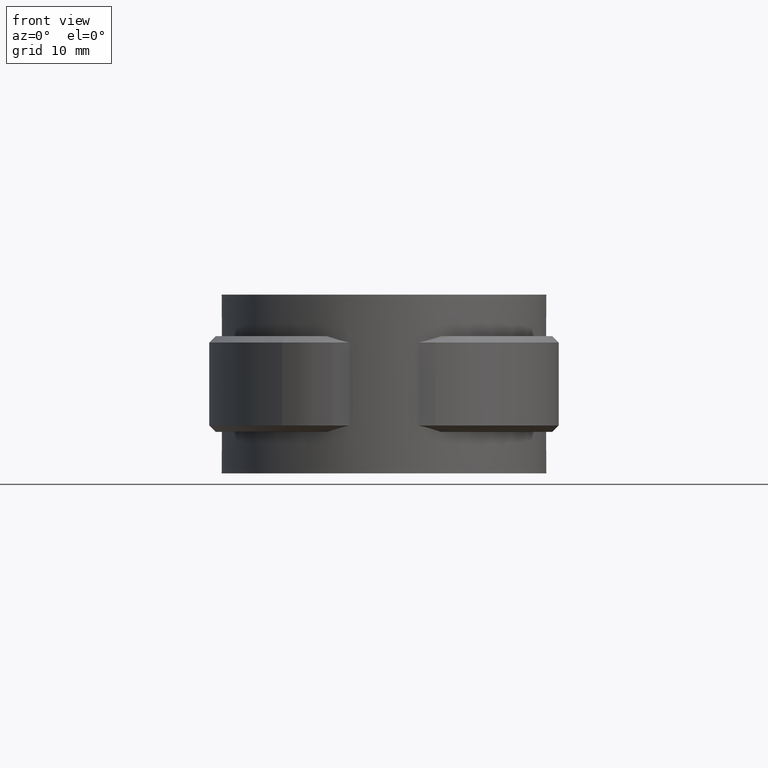
[diagram: clean part render]
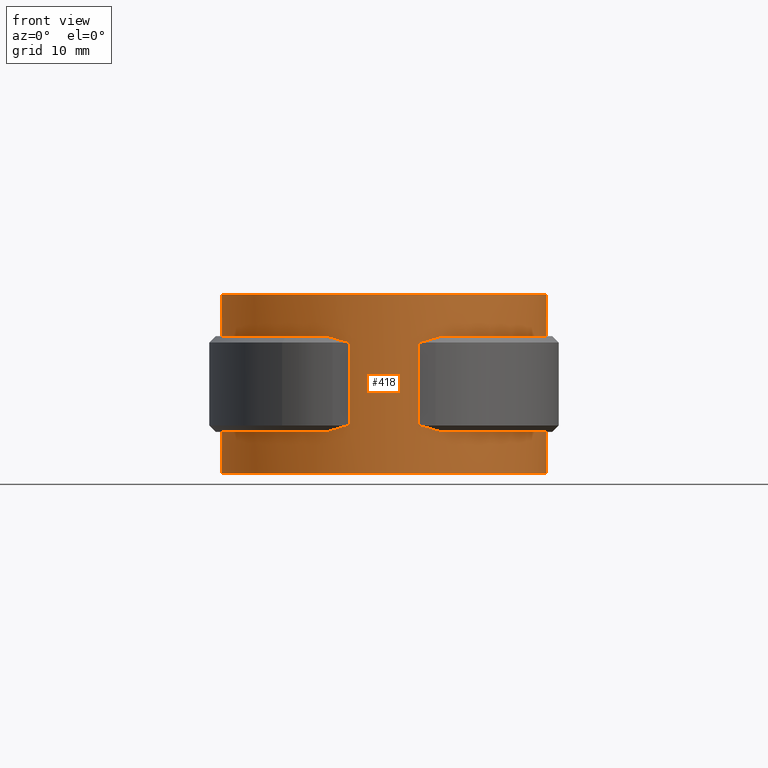
[diagram: same view with one face highlighted and labeled with its STEP entity id]
A machine part, front view. The second image highlights one B-rep face of the part: STEP entity #418.
In plain terms, the highlighted cylindrical surface (partial cylindrical patch) has radius 25.445 mm, axis along (0, 0, -1).
Its self-contained STEP definition (entity closure, byte-faithful):
#418 = ADVANCED_FACE( '', ( #760 ), #761, .T. );
#760 = FACE_OUTER_BOUND( '', #1606, .T. );
#761 = CYLINDRICAL_SURFACE( '', #1607, 25.4450000000000 );
#1606 = EDGE_LOOP( '', ( #4063, #4064, #4065, #4066, #4067, #4068, #4069, #4070, #4071, #4072, #4073, #4074, #4075, #4076, #4077, #4078, #4079, #4080, #4081, #4082 ) );
#1607 = AXIS2_PLACEMENT_3D( '', #4083, #4084, #4085 );
#4063 = ORIENTED_EDGE( '', *, *, #5209, .F. );
#4064 = ORIENTED_EDGE( '', *, *, #5204, .T. );
#4065 = ORIENTED_EDGE( '', *, *, #5145, .T. );
#4066 = ORIENTED_EDGE( '', *, *, #5210, .F. );
#4067 = ORIENTED_EDGE( '', *, *, #5211, .T. );
#4068 = ORIENTED_EDGE( '', *, *, #5212, .T. );
#4069 = ORIENTED_EDGE( '', *, *, #5213, .T. );
#4070 = ORIENTED_EDGE( '', *, *, #5214, .F. );
#4071 = ORIENTED_EDGE( '', *, *, #5215, .T. );
#4072 = ORIENTED_EDGE( '', *, *, #5216, .T. );
#4073 = ORIENTED_EDGE( '', *, *, #5217, .F. );
#4074 = ORIENTED_EDGE( '', *, *, #5218, .T. );
#4075 = ORIENTED_EDGE( '', *, *, #5219, .T. );
#4076 = ORIENTED_EDGE( '', *, *, #5220, .T. );
#4077 = ORIENTED_EDGE( '', *, *, #5221, .T. );
#4078 = ORIENTED_EDGE( '', *, *, #5222, .T. );
#4079 = ORIENTED_EDGE( '', *, *, #5223, .T. );
#4080 = ORIENTED_EDGE( '', *, *, #5224, .T. );
#4081 = ORIENTED_EDGE( '', *, *, #5225, .F. );
#4082 = ORIENTED_EDGE( '', *, *, #5226, .F. );
#4083 = CARTESIAN_POINT( '', ( 0.000000000000000, 0.000000000000000, -26.5000000000000 ) );
#4084 = DIRECTION( '', ( 0.000000000000000, 0.000000000000000, -1.00000000000000 ) );
#4085 = DIRECTION( '', ( -1.00000000000000, 6.07153216591882E-017, 0.000000000000000 ) );
#5145 = EDGE_CURVE( '', #5909, #5912, #5914, .T. );
#5204 = EDGE_CURVE( '', #6001, #5909, #6002, .F. );
#5209 = EDGE_CURVE( '', #6001, #6009, #6010, .T. );
#5210 = EDGE_CURVE( '', #6011, #5912, #6012, .T. );
#5211 = EDGE_CURVE( '', #6011, #6013, #6014, .F. );
#5212 = EDGE_CURVE( '', #6013, #6015, #6016, .T. );
#5213 = EDGE_CURVE( '', #6015, #6017, #6018, .T. );
#5214 = EDGE_CURVE( '', #6019, #6017, #6020, .T. );
#5215 = EDGE_CURVE( '', #6019, #6021, #6022, .T. );
#5216 = EDGE_CURVE( '', #6021, #6023, #6024, .T. );
#5217 = EDGE_CURVE( '', #6025, #6023, #6026, .T. );
#5218 = EDGE_CURVE( '', #6025, #6027, #6028, .F. );
#5219 = EDGE_CURVE( '', #6027, #6029, #6030, .F. );
#5220 = EDGE_CURVE( '', #6029, #6031, #6032, .T. );
#5221 = EDGE_CURVE( '', #6031, #6033, #6034, .T. );
#5222 = EDGE_CURVE( '', #6033, #6035, #6036, .T. );
#5223 = EDGE_CURVE( '', #6035, #6037, #6038, .T. );
#5224 = EDGE_CURVE( '', #6037, #6039, #6040, .T. );
#5225 = EDGE_CURVE( '', #6041, #6039, #6042, .T. );
#5226 = EDGE_CURVE( '', #6009, #6041, #6043, .T. );
#5909 = VERTEX_POINT( '', #9054 );
#5912 = VERTEX_POINT( '', #9058 );
#5914 = ELLIPSE( '', #9061, 35.9846640945834, 25.4450000000000 );
#6001 = VERTEX_POINT( '', #9501 );
#6002 = B_SPLINE_CURVE_WITH_KNOTS( '', 3, ( #9502, #9503, #9504, #9505 ), .UNSPECIFIED., .F., .F., ( 4, 4 ), ( 0.00652673866714741, 0.00747501353473143 ), .UNSPECIFIED. );
#6009 = VERTEX_POINT( '', #9515 );
#6010 = CIRCLE( '', #9516, 25.4450000000000 );
#6011 = VERTEX_POINT( '', #9517 );
#6012 = LINE( '', #9518, #9519 );
#6013 = VERTEX_POINT( '', #9520 );
#6014 = ELLIPSE( '', #9521, 35.9846640945834, 25.4450000000000 );
#6015 = VERTEX_POINT( '', #9522 );
#6016 = B_SPLINE_CURVE_WITH_KNOTS( '', 3, ( #9523, #9524, #9525, #9526 ), .UNSPECIFIED., .F., .F., ( 4, 4 ), ( 0.00652673866714742, 0.00747501353473143 ), .UNSPECIFIED. );
#6017 = VERTEX_POINT( '', #9527 );
#6018 = CIRCLE( '', #9528, 25.4450000000000 );
#6019 = VERTEX_POINT( '', #9529 );
#6020 = LINE( '', #9530, #9531 );
#6021 = VERTEX_POINT( '', #9532 );
#6022 = CIRCLE( '', #9533, 25.4450000000000 );
#6023 = VERTEX_POINT( '', #9534 );
#6024 = LINE( '', #9535, #9536 );
#6025 = VERTEX_POINT( '', #9537 );
#6026 = CIRCLE( '', #9538, 25.4450000000000 );
#6027 = VERTEX_POINT( '', #9539 );
#6028 = B_SPLINE_CURVE_WITH_KNOTS( '', 3, ( #9540, #9541, #9542, #9543 ), .UNSPECIFIED., .F., .F., ( 4, 4 ), ( 0.00652673866714745, 0.00747501353473144 ), .UNSPECIFIED. );
#6029 = VERTEX_POINT( '', #9544 );
#6030 = ELLIPSE( '', #9545, 35.9846640945834, 25.4450000000000 );
#6031 = VERTEX_POINT( '', #9546 );
#6032 = LINE( '', #9547, #9548 );
#6033 = VERTEX_POINT( '', #9549 );
#6034 = ELLIPSE( '', #9550, 35.9846640945834, 25.4450000000000 );
#6035 = VERTEX_POINT( '', #9551 );
#6036 = B_SPLINE_CURVE_WITH_KNOTS( '', 3, ( #9552, #9553, #9554, #9555 ), .UNSPECIFIED., .F., .F., ( 4, 4 ), ( 0.00652673866714744, 0.00747501353473144 ), .UNSPECIFIED. );
#6037 = VERTEX_POINT( '', #9556 );
#6038 = CIRCLE( '', #9557, 25.4450000000000 );
#6039 = VERTEX_POINT( '', #9558 );
#6040 = LINE( '', #9559, #9560 );
#6041 = VERTEX_POINT( '', #9561 );
#6042 = CIRCLE( '', #9562, 25.4450000000000 );
#6043 = LINE( '', #9563, #9564 );
#9054 = CARTESIAN_POINT( '', ( -8.05583173856056, -24.1361057339414, -5.27610573394143 ) );
#9058 = CARTESIAN_POINT( '', ( -5.42479723123359, -24.8600000000000, -6.00000000000001 ) );
#9061 = AXIS2_PLACEMENT_3D( '', #10373, #10374, #10375 );
#9501 = CARTESIAN_POINT( '', ( -8.91979160752349, -23.8303449970485, -5.00000000000000 ) );
#9502 = CARTESIAN_POINT( '', ( -8.05583173856056, -24.1361057339414, -5.27610573394143 ) );
#9503 = CARTESIAN_POINT( '', ( -8.34355497958179, -24.0400732570170, -5.18007325701699 ) );
#9504 = CARTESIAN_POINT( '', ( -8.63150361201531, -23.9382523245841, -5.08788595841346 ) );
#9505 = CARTESIAN_POINT( '', ( -8.91979160752349, -23.8303449970485, -5.00000000000000 ) );
#9515 = CARTESIAN_POINT( '', ( -6.09999999999999, 24.7029962757557, -5.00000000000000 ) );
#9516 = AXIS2_PLACEMENT_3D( '', #10441, #10442, #10443 );
#9517 = CARTESIAN_POINT( '', ( -5.42479723123359, -24.8600000000000, -19.0000000000000 ) );
#9518 = CARTESIAN_POINT( '', ( -5.42479723123359, -24.8600000000000, -20.0000000000000 ) );
#9519 = VECTOR( '', #10444, 1000.00000000000 );
#9520 = CARTESIAN_POINT( '', ( -8.05583173856057, -24.1361057339414, -19.7238942660586 ) );
#9521 = AXIS2_PLACEMENT_3D( '', #10445, #10446, #10447 );
#9522 = CARTESIAN_POINT( '', ( -8.91979160752351, -23.8303449970485, -20.0000000000000 ) );
#9523 = CARTESIAN_POINT( '', ( -8.05583173856057, -24.1361057339414, -19.7238942660586 ) );
#9524 = CARTESIAN_POINT( '', ( -8.34355497958181, -24.0400732570170, -19.8199267429830 ) );
#9525 = CARTESIAN_POINT( '', ( -8.63150361201532, -23.9382523245841, -19.9121140415865 ) );
#9526 = CARTESIAN_POINT( '', ( -8.91979160752350, -23.8303449970485, -20.0000000000000 ) );
#9527 = CARTESIAN_POINT( '', ( -6.09999999999999, 24.7029962757557, -20.0000000000000 ) );
#9528 = AXIS2_PLACEMENT_3D( '', #10448, #10449, #10450 );
#9529 = CARTESIAN_POINT( '', ( -6.10000000000000, 24.7029962757557, -26.5000000000000 ) );
#9530 = CARTESIAN_POINT( '', ( -6.10000000000000, 24.7029962757557, -26.5000000000000 ) );
#9531 = VECTOR( '', #10451, 1000.00000000000 );
#9532 = CARTESIAN_POINT( '', ( 6.10000000000001, 24.7029962757557, -26.5000000000000 ) );
#9533 = AXIS2_PLACEMENT_3D( '', #10452, #10453, #10454 );
#9534 = CARTESIAN_POINT( '', ( 6.10000000000001, 24.7029962757557, -20.0000000000000 ) );
#9535 = CARTESIAN_POINT( '', ( 6.10000000000001, 24.7029962757557, -26.5000000000000 ) );
#9536 = VECTOR( '', #10455, 1000.00000000000 );
#9537 = CARTESIAN_POINT( '', ( 8.91979160752347, -23.8303449970485, -20.0000000000000 ) );
#9538 = AXIS2_PLACEMENT_3D( '', #10456, #10457, #10458 );
#9539 = CARTESIAN_POINT( '', ( 8.05583173856056, -24.1361057339414, -19.7238942660586 ) );
#9540 = CARTESIAN_POINT( '', ( 8.05583173856055, -24.1361057339414, -19.7238942660586 ) );
#9541 = CARTESIAN_POINT( '', ( 8.34355497958178, -24.0400732570170, -19.8199267429830 ) );
#9542 = CARTESIAN_POINT( '', ( 8.63150361201529, -23.9382523245841, -19.9121140415865 ) );
#9543 = CARTESIAN_POINT( '', ( 8.91979160752347, -23.8303449970485, -20.0000000000000 ) );
#9544 = CARTESIAN_POINT( '', ( 5.42479723123360, -24.8600000000000, -19.0000000000000 ) );
#9545 = AXIS2_PLACEMENT_3D( '', #10459, #10460, #10461 );
#9546 = CARTESIAN_POINT( '', ( 5.42479723123360, -24.8600000000000, -6.00000000000001 ) );
#9547 = CARTESIAN_POINT( '', ( 5.42479723123360, -24.8600000000000, -20.0000000000000 ) );
#9548 = VECTOR( '', #10462, 1000.00000000000 );
#9549 = CARTESIAN_POINT( '', ( 8.05583173856055, -24.1361057339414, -5.27610573394143 ) );
#9550 = AXIS2_PLACEMENT_3D( '', #10463, #10464, #10465 );
#9551 = CARTESIAN_POINT( '', ( 8.91979160752347, -23.8303449970485, -5.00000000000000 ) );
#9552 = CARTESIAN_POINT( '', ( 8.05583173856055, -24.1361057339414, -5.27610573394142 ) );
#9553 = CARTESIAN_POINT( '', ( 8.34355497958178, -24.0400732570170, -5.18007325701699 ) );
#9554 = CARTESIAN_POINT( '', ( 8.63150361201529, -23.9382523245841, -5.08788595841346 ) );
#9555 = CARTESIAN_POINT( '', ( 8.91979160752347, -23.8303449970485, -5.00000000000000 ) );
#9556 = CARTESIAN_POINT( '', ( 6.10000000000001, 24.7029962757557, -5.00000000000000 ) );
#9557 = AXIS2_PLACEMENT_3D( '', #10466, #10467, #10468 );
#9558 = CARTESIAN_POINT( '', ( 6.10000000000001, 24.7029962757557, 1.50000000000000 ) );
#9559 = CARTESIAN_POINT( '', ( 6.10000000000001, 24.7029962757557, -26.5000000000000 ) );
#9560 = VECTOR( '', #10469, 1000.00000000000 );
#9561 = CARTESIAN_POINT( '', ( -6.10000000000000, 24.7029962757557, 1.50000000000000 ) );
#9562 = AXIS2_PLACEMENT_3D( '', #10470, #10471, #10472 );
#9563 = CARTESIAN_POINT( '', ( -6.10000000000000, 24.7029962757557, -26.5000000000000 ) );
#9564 = VECTOR( '', #10473, 1000.00000000000 );
#10373 = CARTESIAN_POINT( '', ( 0.000000000000000, 0.000000000000000, 18.8600000000000 ) );
#10374 = DIRECTION( '', ( 0.000000000000000, -0.707106781186548, 0.707106781186548 ) );
#10375 = DIRECTION( '', ( 0.000000000000000, 0.707106781186548, 0.707106781186548 ) );
#10441 = CARTESIAN_POINT( '', ( -8.67361737988404E-016, -3.46944695195361E-015, -5.00000000000000 ) );
#10442 = DIRECTION( '', ( 0.000000000000000, 0.000000000000000, -1.00000000000000 ) );
#10443 = DIRECTION( '', ( 1.00000000000000, -2.77555756156289E-017, 0.000000000000000 ) );
#10444 = DIRECTION( '', ( 0.000000000000000, 0.000000000000000, 1.00000000000000 ) );
#10445 = CARTESIAN_POINT( '', ( 0.000000000000000, 0.000000000000000, -43.8600000000000 ) );
#10446 = DIRECTION( '', ( 0.000000000000000, 0.707106781186548, 0.707106781186548 ) );
#10447 = DIRECTION( '', ( 0.000000000000000, -0.707106781186548, 0.707106781186548 ) );
#10448 = CARTESIAN_POINT( '', ( -8.67361737988404E-016, -3.46944695195361E-015, -20.0000000000000 ) );
#10449 = DIRECTION( '', ( 0.000000000000000, 0.000000000000000, -1.00000000000000 ) );
#10450 = DIRECTION( '', ( 1.00000000000000, -2.77555756156289E-017, 0.000000000000000 ) );
#10451 = DIRECTION( '', ( 0.000000000000000, 0.000000000000000, 1.00000000000000 ) );
#10452 = CARTESIAN_POINT( '', ( 0.000000000000000, 0.000000000000000, -26.5000000000000 ) );
#10453 = DIRECTION( '', ( 0.000000000000000, 0.000000000000000, 1.00000000000000 ) );
#10454 = DIRECTION( '', ( 1.00000000000000, -6.07153216591882E-017, 0.000000000000000 ) );
#10455 = DIRECTION( '', ( 0.000000000000000, 0.000000000000000, 1.00000000000000 ) );
#10456 = CARTESIAN_POINT( '', ( -8.67361737988404E-016, -3.46944695195361E-015, -20.0000000000000 ) );
#10457 = DIRECTION( '', ( 0.000000000000000, 0.000000000000000, 1.00000000000000 ) );
#10458 = DIRECTION( '', ( 1.00000000000000, -2.77555756156289E-017, 0.000000000000000 ) );
#10459 = CARTESIAN_POINT( '', ( 0.000000000000000, 0.000000000000000, -43.8600000000000 ) );
#10460 = DIRECTION( '', ( 0.000000000000000, 0.707106781186548, 0.707106781186548 ) );
#10461 = DIRECTION( '', ( 0.000000000000000, -0.707106781186548, 0.707106781186548 ) );
#10462 = DIRECTION( '', ( 0.000000000000000, 0.000000000000000, 1.00000000000000 ) );
#10463 = CARTESIAN_POINT( '', ( 0.000000000000000, 0.000000000000000, 18.8600000000000 ) );
#10464 = DIRECTION( '', ( 0.000000000000000, -0.707106781186548, 0.707106781186548 ) );
#10465 = DIRECTION( '', ( 0.000000000000000, 0.707106781186548, 0.707106781186548 ) );
#10466 = CARTESIAN_POINT( '', ( -8.67361737988404E-016, -3.46944695195361E-015, -5.00000000000000 ) );
#10467 = DIRECTION( '', ( 0.000000000000000, 0.000000000000000, 1.00000000000000 ) );
#10468 = DIRECTION( '', ( 1.00000000000000, -2.77555756156289E-017, 0.000000000000000 ) );
#10469 = DIRECTION( '', ( 0.000000000000000, 0.000000000000000, 1.00000000000000 ) );
#10470 = CARTESIAN_POINT( '', ( 0.000000000000000, 0.000000000000000, 1.50000000000000 ) );
#10471 = DIRECTION( '', ( 0.000000000000000, 0.000000000000000, 1.00000000000000 ) );
#10472 = DIRECTION( '', ( 1.00000000000000, -6.07153216591882E-017, 0.000000000000000 ) );
#10473 = DIRECTION( '', ( 0.000000000000000, 0.000000000000000, 1.00000000000000 ) );